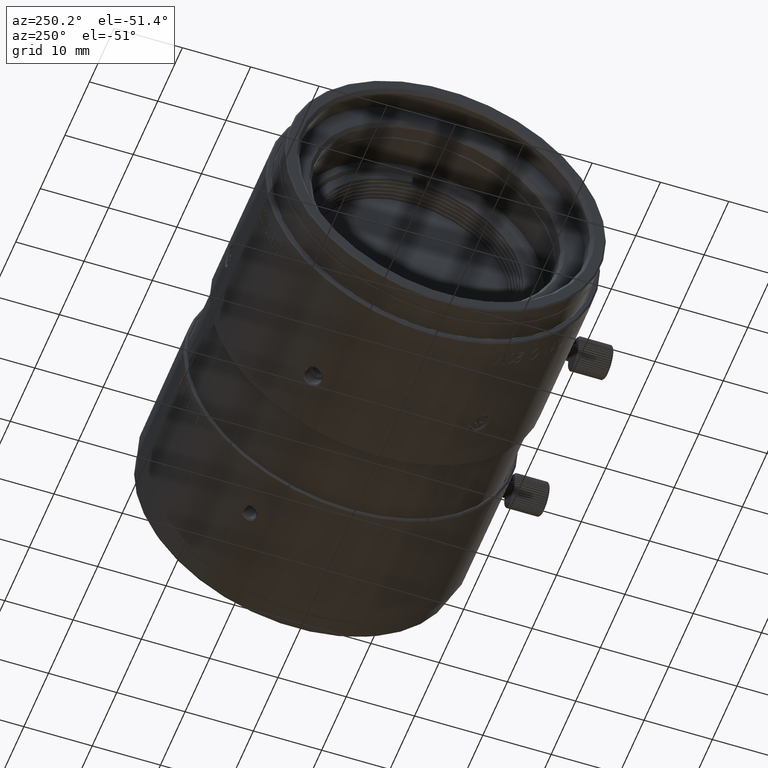
[diagram: clean part render]
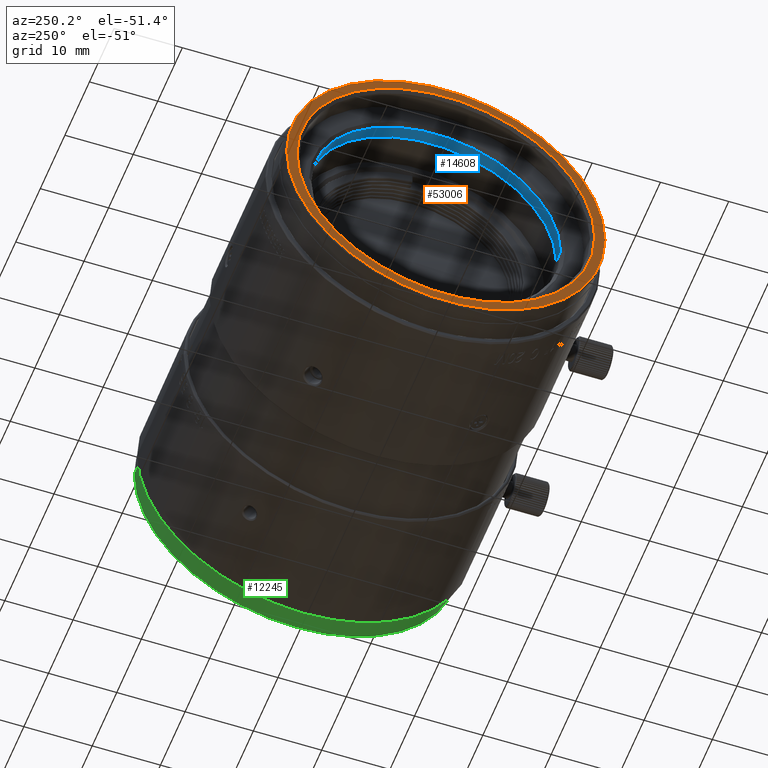
[diagram: same view with three faces highlighted in distinct colors, each labeled with its STEP entity id]
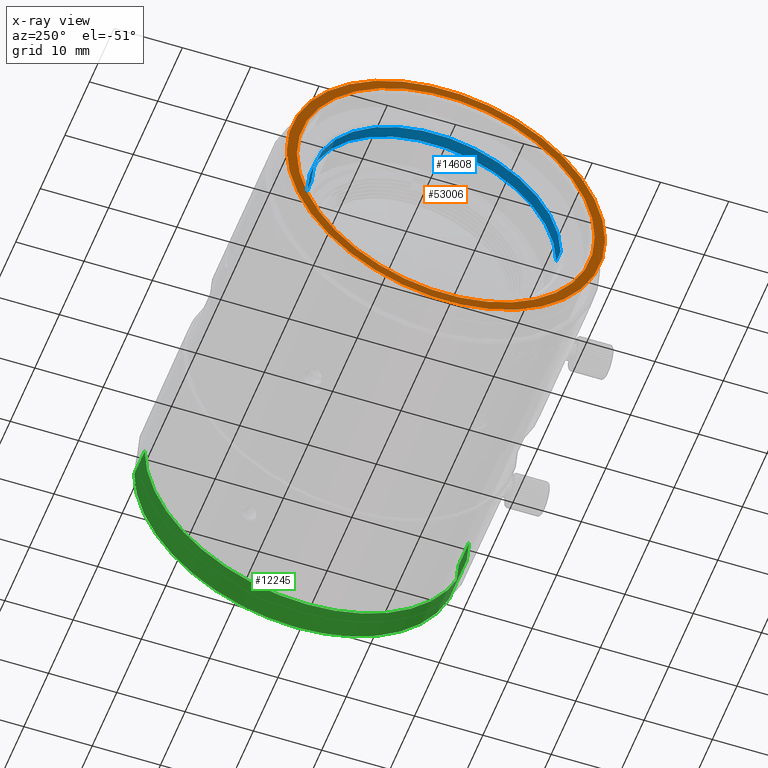
[diagram: x-ray of the same camera — body ghosted, the three highlighted faces saturated]
A machine part, auxiliary view with three faces highlighted in distinct colors.
The next image is the same camera in x-ray (body ghosted, the three faces saturated) — at least one of them is partly hidden behind the body in this view.
Their STEP definitions:

[orange] entity #53006 — the highlighted planar face has unit normal (1, 0, 0).
#2593 = ORIENTED_EDGE ( 'NONE', *, *, #70564, .T. ) ;
#6512 = DIRECTION ( 'NONE',  ( 1.000000000000000000, 0.000000000000000000, 0.000000000000000000 ) ) ;
#8131 = CIRCLE ( 'NONE', #46108, 21.80000000000999805 ) ;
#8739 = AXIS2_PLACEMENT_3D ( 'NONE', #130828, #6512, #45280 ) ;
#9796 = CARTESIAN_POINT ( 'NONE',  ( -68.27880000000000393, -23.30000000000000071, -1.266229983587000064E-09 ) ) ;
#11678 = FACE_BOUND ( 'NONE', #108172, .T. ) ;
#12049 = VERTEX_POINT ( 'NONE', #44256 ) ;
#17260 = EDGE_CURVE ( 'NONE', #120674, #12049, #121733, .T. ) ;
#17475 = CARTESIAN_POINT ( 'NONE',  ( -68.27880000000000393, -21.80000000000000071, 3.781123150108999904E-10 ) ) ;
#18297 = CIRCLE ( 'NONE', #67519, 21.79999999998999627 ) ;
#18464 = CARTESIAN_POINT ( 'NONE',  ( -68.27880000004999772, 0.000000000000000000, -5.222489109705000318E-13 ) ) ;
#20557 = DIRECTION ( 'NONE',  ( 1.000000000000000000, 8.574845667195749557E-26, 3.579359031390999815E-12 ) ) ;
#23474 = ORIENTED_EDGE ( 'NONE', *, *, #25064, .T. ) ;
#23613 = AXIS2_PLACEMENT_3D ( 'NONE', #29751, #52162, #115273 ) ;
#25064 = EDGE_CURVE ( 'NONE', #104767, #102754, #8131, .T. ) ;
#26887 = EDGE_LOOP ( 'NONE', ( #58189, #2593 ) ) ;
#29751 = CARTESIAN_POINT ( 'NONE',  ( -68.27879999998000926, 0.000000000000000000, -6.972200594890999989E-13 ) ) ;
#36203 = DIRECTION ( 'NONE',  ( 0.000000000000000000, -1.000000000000000000, -2.066063105055000529E-14 ) ) ;
#44256 = CARTESIAN_POINT ( 'NONE',  ( -68.27880000000000393, 23.30000000000000071, 1.499938587181000131E-09 ) ) ;
#45280 = DIRECTION ( 'NONE',  ( 0.000000000000000000, 1.000000000000000000, 0.000000000000000000 ) ) ;
#46108 = AXIS2_PLACEMENT_3D ( 'NONE', #18464, #20557, #127111 ) ;
#46830 = ORIENTED_EDGE ( 'NONE', *, *, #62406, .T. ) ;
#49215 = PLANE ( 'NONE',  #8739 ) ;
#52162 = DIRECTION ( 'NONE',  ( -1.000000000000000000, -3.760716618012869900E-26, 1.256772463876000119E-12 ) ) ;
#53006 = ADVANCED_FACE ( 'NONE', ( #95090, #11678 ), #49215, .F. ) ;
#58189 = ORIENTED_EDGE ( 'NONE', *, *, #17260, .T. ) ;
#62406 = EDGE_CURVE ( 'NONE', #102754, #104767, #18297, .T. ) ;
#67519 = AXIS2_PLACEMENT_3D ( 'NONE', #93484, #96247, #106101 ) ;
#70564 = EDGE_CURVE ( 'NONE', #12049, #120674, #133385, .T. ) ;
#85918 = AXIS2_PLACEMENT_3D ( 'NONE', #132250, #111204, #36203 ) ;
#93484 = CARTESIAN_POINT ( 'NONE',  ( -68.27879999995001015, 0.000000000000000000, -1.058708676093999959E-12 ) ) ;
#95090 = FACE_OUTER_BOUND ( 'NONE', #26887, .T. ) ;
#96247 = DIRECTION ( 'NONE',  ( 1.000000000000000000, -1.746066175067390209E-25, 3.595346242946000312E-12 ) ) ;
#102754 = VERTEX_POINT ( 'NONE', #117499 ) ;
#104767 = VERTEX_POINT ( 'NONE', #17475 ) ;
#106101 = DIRECTION ( 'NONE',  ( 0.000000000000000000, 1.000000000000000000, 4.856461817810000820E-14 ) ) ;
#108172 = EDGE_LOOP ( 'NONE', ( #46830, #23474 ) ) ;
#111204 = DIRECTION ( 'NONE',  ( -1.000000000000000000, -2.541520239153825148E-26, 1.230127111284999997E-12 ) ) ;
#115273 = DIRECTION ( 'NONE',  ( 0.000000000000000000, 1.000000000000000000, 2.992360770233999883E-14 ) ) ;
#117499 = CARTESIAN_POINT ( 'NONE',  ( -68.27880000000000393, 21.80000000000000071, -4.466453821071000241E-10 ) ) ;
#120674 = VERTEX_POINT ( 'NONE', #9796 ) ;
#121733 = CIRCLE ( 'NONE', #85918, 23.30000000000000071 ) ;
#127111 = DIRECTION ( 'NONE',  ( 0.000000000000000000, -1.000000000000000000, 2.395637205430999957E-14 ) ) ;
#130828 = CARTESIAN_POINT ( 'NONE',  ( -68.27880000000000393, 0.000000000000000000, 0.000000000000000000 ) ) ;
#132250 = CARTESIAN_POINT ( 'NONE',  ( -68.27880000001999861, 0.000000000000000000, 4.813927035010000132E-13 ) ) ;
#133385 = CIRCLE ( 'NONE', #23613, 23.30000000000000071 ) ;

[blue] entity #14608 — the highlighted cylindrical surface (partial cylindrical patch) has radius 18.25 mm, axis along (1, 0, 0).
#178 = DIRECTION ( 'NONE',  ( 1.000000000000000000, -1.578983857245000049E-14, -8.855434263371000100E-10 ) ) ;
#2730 = DIRECTION ( 'NONE',  ( -1.000000000000000000, 0.000000000000000000, -8.864327564613000390E-10 ) ) ;
#3420 = CARTESIAN_POINT ( 'NONE',  ( -62.47879999999999967, 18.25000000000000000, 2.149902843353999862E-09 ) ) ;
#4885 = VECTOR ( 'NONE', #2730, 1000.000000000000000 ) ;
#12556 = LINE ( 'NONE', #3420, #4885 ) ;
#14608 = ADVANCED_FACE ( 'NONE', ( #34028 ), #109024, .F. ) ;
#17293 = DIRECTION ( 'NONE',  ( -1.000000000000000000, 0.000000000000000000, 0.000000000000000000 ) ) ;
#19518 = ORIENTED_EDGE ( 'NONE', *, *, #97611, .F. ) ;
#27126 = CARTESIAN_POINT ( 'NONE',  ( -62.47879999995999611, 0.000000000000000000, 1.167954621906000117E-12 ) ) ;
#30366 = VECTOR ( 'NONE', #178, 1000.000000000000000 ) ;
#34028 = FACE_OUTER_BOUND ( 'NONE', #84570, .T. ) ;
#43844 = CARTESIAN_POINT ( 'NONE',  ( -63.37879999999999825, 0.000000000000000000, 1.167954621906000117E-12 ) ) ;
#44684 = CIRCLE ( 'NONE', #67091, 18.25000000000000000 ) ;
#49150 = VERTEX_POINT ( 'NONE', #125933 ) ;
#50693 = AXIS2_PLACEMENT_3D ( 'NONE', #43844, #52958, #108329 ) ;
#52958 = DIRECTION ( 'NONE',  ( 1.000000000000000000, 0.000000000000000000, 0.000000000000000000 ) ) ;
#57298 = CARTESIAN_POINT ( 'NONE',  ( -64.27880000000000393, -18.25000000000000000, 3.399825707420000045E-10 ) ) ;
#61347 = AXIS2_PLACEMENT_3D ( 'NONE', #68774, #66011, #111547 ) ;
#64265 = ORIENTED_EDGE ( 'NONE', *, *, #100198, .F. ) ;
#66011 = DIRECTION ( 'NONE',  ( 1.000000000000000000, 0.000000000000000000, 0.000000000000000000 ) ) ;
#67091 = AXIS2_PLACEMENT_3D ( 'NONE', #27126, #17293, #79016 ) ;
#68774 = CARTESIAN_POINT ( 'NONE',  ( -64.27880000000000393, 0.000000000000000000, 1.167954621906000117E-12 ) ) ;
#71542 = CARTESIAN_POINT ( 'NONE',  ( -62.47879999999999967, -18.25000000000000000, -1.253995596664999940E-09 ) ) ;
#79016 = DIRECTION ( 'NONE',  ( 0.000000000000000000, -1.000000000000000000, -6.409933875360998550E-14 ) ) ;
#84570 = EDGE_LOOP ( 'NONE', ( #132953, #64265, #19518, #132298 ) ) ;
#86311 = CARTESIAN_POINT ( 'NONE',  ( -62.47879999999999967, 18.25000000000000000, 2.149902843353999862E-09 ) ) ;
#96174 = LINE ( 'NONE', #103935, #30366 ) ;
#97611 = EDGE_CURVE ( 'NONE', #119988, #98688, #96174, .T. ) ;
#98688 = VERTEX_POINT ( 'NONE', #71542 ) ;
#99396 = CIRCLE ( 'NONE', #61347, 18.25000000000000000 ) ;
#100198 = EDGE_CURVE ( 'NONE', #98688, #102521, #44684, .T. ) ;
#102521 = VERTEX_POINT ( 'NONE', #86311 ) ;
#103935 = CARTESIAN_POINT ( 'NONE',  ( -64.27880000000000393, -18.25000000000000000, 3.399825707420000045E-10 ) ) ;
#104005 = EDGE_CURVE ( 'NONE', #102521, #49150, #12556, .T. ) ;
#108329 = DIRECTION ( 'NONE',  ( 0.000000000000000000, 1.000000000000000000, 7.974404010236000123E-11 ) ) ;
#109024 = CYLINDRICAL_SURFACE ( 'NONE', #50693, 18.25000000000000000 ) ;
#111547 = DIRECTION ( 'NONE',  ( 0.000000000000000000, 1.000000000000000000, 7.974404010236000123E-11 ) ) ;
#112237 = EDGE_CURVE ( 'NONE', #49150, #119988, #99396, .T. ) ;
#119988 = VERTEX_POINT ( 'NONE', #57298 ) ;
#125933 = CARTESIAN_POINT ( 'NONE',  ( -64.27880000000000393, 18.25000000000000000, 5.543238817240000315E-10 ) ) ;
#132298 = ORIENTED_EDGE ( 'NONE', *, *, #112237, .F. ) ;
#132953 = ORIENTED_EDGE ( 'NONE', *, *, #104005, .F. ) ;

[green] entity #12245 — the highlighted cylindrical surface (partial cylindrical patch) has radius 23.75 mm, axis along (-1, 0, 0).
#6990 = AXIS2_PLACEMENT_3D ( 'NONE', #107664, #10961, #55054 ) ;
#10961 = DIRECTION ( 'NONE',  ( -1.000000000000000000, 0.000000000000000000, 0.000000000000000000 ) ) ;
#12245 = ADVANCED_FACE ( 'NONE', ( #39274 ), #136033, .T. ) ;
#13611 = EDGE_CURVE ( 'NONE', #102720, #39333, #74151, .T. ) ;
#18824 = ORIENTED_EDGE ( 'NONE', *, *, #70093, .T. ) ;
#19572 = DIRECTION ( 'NONE',  ( -1.000000000000000000, 2.926590920379610318E-26, -9.769962616700999912E-13 ) ) ;
#21072 = EDGE_LOOP ( 'NONE', ( #27808, #23277, #118603, #18824 ) ) ;
#21181 = DIRECTION ( 'NONE',  ( -1.000000000000000000, 4.293826276428000465E-12, -2.711082134916999671E-10 ) ) ;
#23277 = ORIENTED_EDGE ( 'NONE', *, *, #102905, .F. ) ;
#27808 = ORIENTED_EDGE ( 'NONE', *, *, #13611, .F. ) ;
#36856 = CARTESIAN_POINT ( 'NONE',  ( -11.77880000002000038, 23.75000000002000178, -9.682113781626000989E-10 ) ) ;
#39274 = FACE_OUTER_BOUND ( 'NONE', #21072, .T. ) ;
#39333 = VERTEX_POINT ( 'NONE', #135747 ) ;
#51844 = DIRECTION ( 'NONE',  ( 0.000000000000000000, 1.000000000000000000, -1.322731398097000076E-13 ) ) ;
#52492 = DIRECTION ( 'NONE',  ( 0.000000000000000000, 1.000000000000000000, 2.995498586020000109E-14 ) ) ;
#55054 = DIRECTION ( 'NONE',  ( 0.000000000000000000, 1.000000000000000000, -1.322731398097000076E-13 ) ) ;
#60973 = VERTEX_POINT ( 'NONE', #36856 ) ;
#64980 = DIRECTION ( 'NONE',  ( 1.000000000000000000, 4.295478701394999558E-12, -2.709176097774999796E-10 ) ) ;
#70093 = EDGE_CURVE ( 'NONE', #77390, #39333, #135500, .T. ) ;
#74151 = LINE ( 'NONE', #118291, #84272 ) ;
#74451 = LINE ( 'NONE', #107361, #87169 ) ;
#75028 = AXIS2_PLACEMENT_3D ( 'NONE', #117672, #19572, #52492 ) ;
#77390 = VERTEX_POINT ( 'NONE', #117762 ) ;
#81367 = DIRECTION ( 'NONE',  ( -1.000000000000000000, 0.000000000000000000, 0.000000000000000000 ) ) ;
#84272 = VECTOR ( 'NONE', #64980, 1000.000000000000000 ) ;
#84457 = EDGE_CURVE ( 'NONE', #77390, #60973, #74451, .T. ) ;
#87169 = VECTOR ( 'NONE', #21181, 1000.000000000000000 ) ;
#93906 = CARTESIAN_POINT ( 'NONE',  ( -9.628799999998999937, 0.000000000000000000, 3.141487070479000038E-12 ) ) ;
#102720 = VERTEX_POINT ( 'NONE', #124739 ) ;
#102905 = EDGE_CURVE ( 'NONE', #60973, #102720, #118935, .T. ) ;
#107361 = CARTESIAN_POINT ( 'NONE',  ( -7.478799999997999493, 23.75000000000000000, 1.975539398573000015E-10 ) ) ;
#107664 = CARTESIAN_POINT ( 'NONE',  ( -11.77880000002000038, 0.000000000000000000, 3.141487070479000038E-12 ) ) ;
#113078 = AXIS2_PLACEMENT_3D ( 'NONE', #93906, #81367, #51844 ) ;
#117672 = CARTESIAN_POINT ( 'NONE',  ( -7.478800000007999493, 0.000000000000000000, -7.114309141891000345E-13 ) ) ;
#117762 = CARTESIAN_POINT ( 'NONE',  ( -7.478799999997999493, 23.75000000000000000, 1.975539398573000015E-10 ) ) ;
#118291 = CARTESIAN_POINT ( 'NONE',  ( -11.77880000002000038, -23.75000000002000178, 1.724030548609000117E-09 ) ) ;
#118603 = ORIENTED_EDGE ( 'NONE', *, *, #84457, .F. ) ;
#118935 = CIRCLE ( 'NONE', #6990, 23.75000000000000000 ) ;
#124739 = CARTESIAN_POINT ( 'NONE',  ( -11.77880000002000038, -23.75000000002000178, 1.724030548609000117E-09 ) ) ;
#135500 = CIRCLE ( 'NONE', #75028, 23.75000000000000000 ) ;
#135747 = CARTESIAN_POINT ( 'NONE',  ( -7.478799999997999493, -23.75000000000000000, 5.590848265597000038E-10 ) ) ;
#136033 = CYLINDRICAL_SURFACE ( 'NONE', #113078, 23.75000000000000000 ) ;